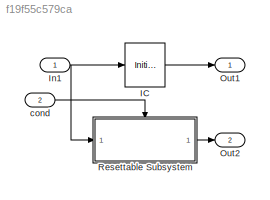
MODEL slx_f19f55c579ca
KIND model
CONFIG AbsTol = auto
CONFIG EnableMultiTasking = off
CONFIG FixedStep = 0.1
CONFIG MaxStep = auto
CONFIG MinStep = auto
CONFIG RelTol = 1e-3
CONFIG SampleTimeConstraint = Unconstrained
CONFIG Solver = FixedStepAuto
CONFIG SolverName = FixedStepAuto
CONFIG StartTime = 0.0
CONFIG StopTime = 10.0
BLOCK [InitialCondition] IC
  Value = 1.2
BLOCK [Inport] In1
  IconDisplay = Port number
BLOCK [Outport] Out1
  IconDisplay = Port number
BLOCK [Outport] Out2
  IconDisplay = Port number
  Port = 2
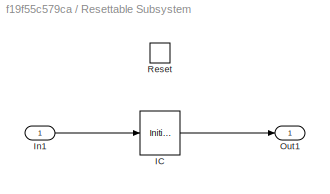
BLOCK [SubSystem] Resettable Subsystem
  Ports = [1, 1, 0, 0, 0, 0, 0, 0, 1]
  RequestExecContextInheritance = off
  TreatAsAtomicUnit = on
  Variant = off
BLOCK [InitialCondition] Resettable Subsystem/IC
  Value = 1.2
BLOCK [Inport] Resettable Subsystem/In1
  IconDisplay = Port number
BLOCK [Outport] Resettable Subsystem/Out1
  IconDisplay = Port number
BLOCK [ResetPort] Resettable Subsystem/Reset
  DisableCoverage = on
  ResetTriggerType = either
BLOCK [Inport] cond
  IconDisplay = Port number
  OutDataTypeStr = boolean
  Port = 2
LINE IC:1 -> Out1:1
NET In1:1 -> IC:1, Resettable Subsystem:1
LINE Resettable Subsystem/IC:1 -> Resettable Subsystem/Out1:1
LINE Resettable Subsystem/In1:1 -> Resettable Subsystem/IC:1
LINE Resettable Subsystem:1 -> Out2:1
LINE cond:1 -> Resettable Subsystem:Reset
note: NET lines group one-source signal fan-out (src -> all destinations, sorted); 1:1 wires keep LINE
